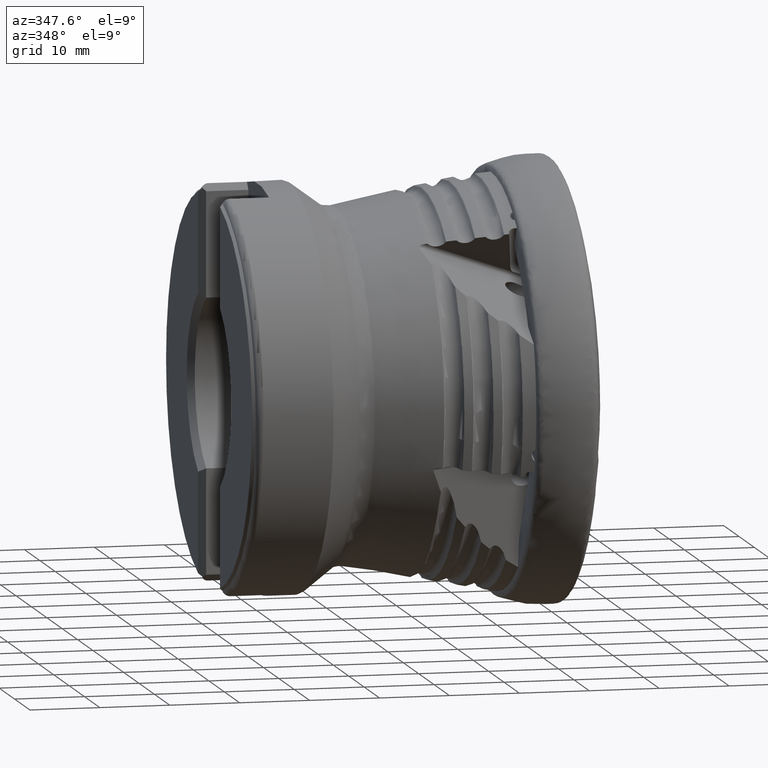
[diagram: clean part render]
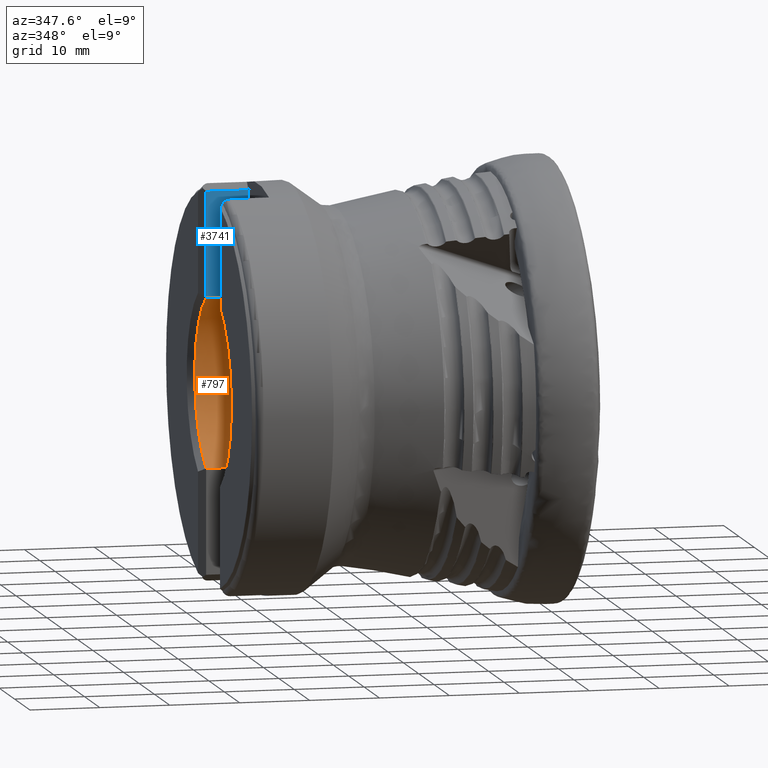
[diagram: same view with the hole feature highlighted: cylindrical wall and planar end face, labeled with their STEP entity ids]
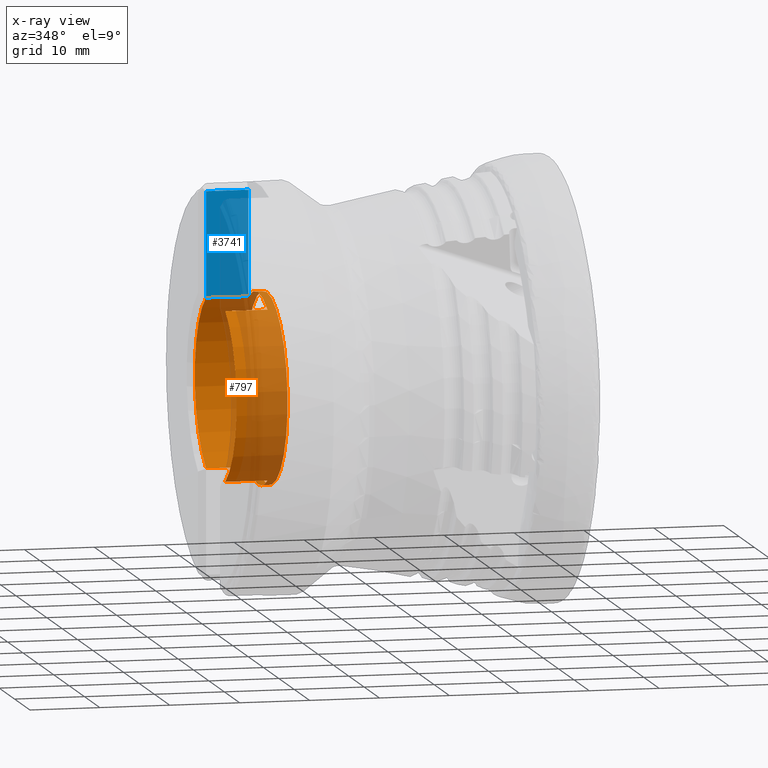
[diagram: x-ray of the same camera — body ghosted, the hole faces saturated]
A machine part, auxiliary view. The highlighted faces form one hole feature of diameter 27.15 mm: the cylindrical wall (entity #797, orange) and its adjacent planar end face (entity #3741, blue) — they share a circular edge in the B-rep.
The next image is the same camera in x-ray (body ghosted, the hole faces saturated) — the bore reads through the body.
Wall:
#274 = ORIENTED_EDGE ( 'NONE', *, *, #3634, .F. ) ;
#333 = DIRECTION ( 'NONE',  ( 0.0000000000000000000, 1.776356839400250500E-015, -1.000000000000000000 ) ) ;
#348 = CARTESIAN_POINT ( 'NONE',  ( -48.04999999999999700, -6.200000000000005500, -12.07644918839970000 ) ) ;
#521 = CARTESIAN_POINT ( 'NONE',  ( -48.04999999999999700, -6.200000000000005500, 12.07644918839969800 ) ) ;
#560 = CIRCLE ( 'NONE', #2340, 13.57499999999999400 ) ;
#593 = CARTESIAN_POINT ( 'NONE',  ( 1.777733148934907600E-015, -6.199999999999992200, 12.07644918839970500 ) ) ;
#597 = EDGE_CURVE ( 'Kante69', #1904, #8411, #560, .T. ) ;
#647 = VERTEX_POINT ( 'NONE', #348 ) ;
#727 = LINE ( 'NONE', #10074, #3137 ) ;
#735 = VERTEX_POINT ( 'NONE', #10151 ) ;
#797 = ADVANCED_FACE ( 'NONE', ( #7939, #6285 ), #9847, .F. ) ;
#858 = EDGE_LOOP ( 'NONE', ( #274, #6076, #8115, #8631, #5950, #9657, #4501, #9560 ) ) ;
#1239 = DIRECTION ( 'NONE',  ( 0.0000000000000000000, 0.0000000000000000000, -1.000000000000000000 ) ) ;
#1568 = VECTOR ( 'NONE', #9137, 1000.000000000000000 ) ;
#1850 = VERTEX_POINT ( 'NONE', #7727 ) ;
#1904 = VERTEX_POINT ( 'NONE', #7566 ) ;
#1946 = DIRECTION ( 'NONE',  ( 1.000000000000000000, -0.0000000000000000000, -0.0000000000000000000 ) ) ;
#2043 = EDGE_CURVE ( 'Kante70', #3146, #1850, #6394, .T. ) ;
#2046 = EDGE_CURVE ( 'Kante3', #9557, #1904, #10491, .T. ) ;
#2066 = AXIS2_PLACEMENT_3D ( 'NONE', #9563, #4672, #10389 ) ;
#2226 = AXIS2_PLACEMENT_3D ( 'NONE', #2777, #8479, #3596 ) ;
#2340 = AXIS2_PLACEMENT_3D ( 'NONE', #10096, #5205, #333 ) ;
#2400 = VERTEX_POINT ( 'NONE', #4667 ) ;
#2594 = CARTESIAN_POINT ( 'NONE',  ( 0.0000000000000000000, 6.199999999999994000, -12.07644918839970500 ) ) ;
#2777 = CARTESIAN_POINT ( 'NONE',  ( -40.74999999999999300, 0.0000000000000000000, 0.0000000000000000000 ) ) ;
#2897 = CARTESIAN_POINT ( 'NONE',  ( -41.99999999999999300, 6.199999999999994000, 12.07644918839970500 ) ) ;
#2913 = DIRECTION ( 'NONE',  ( 1.000000000000000000, -0.0000000000000000000, -0.0000000000000000000 ) ) ;
#2945 = DIRECTION ( 'NONE',  ( 1.000000000000000000, -0.0000000000000000000, -0.0000000000000000000 ) ) ;
#3135 = VERTEX_POINT ( 'NONE', #8571 ) ;
#3137 = VECTOR ( 'NONE', #5222, 1000.000000000000000 ) ;
#3146 = VERTEX_POINT ( 'NONE', #8189 ) ;
#3596 = DIRECTION ( 'NONE',  ( 0.0000000000000000000, 0.0000000000000000000, -1.000000000000000000 ) ) ;
#3634 = EDGE_CURVE ( 'NONE', #735, #2400, #5492, .T. ) ;
#3972 = VECTOR ( 'NONE', #7881, 1000.000000000000000 ) ;
#4148 = EDGE_LOOP ( 'NONE', ( #7895 ) ) ;
#4342 = AXIS2_PLACEMENT_3D ( 'NONE', #6852, #1946, #7675 ) ;
#4501 = ORIENTED_EDGE ( 'NONE', *, *, #597, .T. ) ;
#4667 = CARTESIAN_POINT ( 'NONE',  ( -48.04999999999999700, 6.199999999999994000, 12.07644918839970500 ) ) ;
#4672 = DIRECTION ( 'NONE',  ( -1.000000000000000000, -0.0000000000000000000, -0.0000000000000000000 ) ) ;
#5177 = LINE ( 'NONE', #7837, #7096 ) ;
#5205 = DIRECTION ( 'NONE',  ( -1.000000000000000000, -0.0000000000000000000, -0.0000000000000000000 ) ) ;
#5222 = DIRECTION ( 'NONE',  ( -1.000000000000000000, 0.0000000000000000000, 0.0000000000000000000 ) ) ;
#5340 = EDGE_CURVE ( 'NONE', #8411, #2400, #727, .T. ) ;
#5398 = CIRCLE ( 'NONE', #4342, 13.57499999999999400 ) ;
#5492 = CIRCLE ( 'NONE', #8926, 13.57499999999999400 ) ;
#5787 = CIRCLE ( 'NONE', #2226, 13.57499999999999400 ) ;
#5950 = ORIENTED_EDGE ( 'NONE', *, *, #7546, .F. ) ;
#6076 = ORIENTED_EDGE ( 'NONE', *, *, #7396, .T. ) ;
#6285 = FACE_OUTER_BOUND ( 'NONE', #4148, .T. ) ;
#6394 = CIRCLE ( 'NONE', #2066, 13.57499999999999400 ) ;
#6852 = CARTESIAN_POINT ( 'NONE',  ( -48.04999999999999700, 0.0000000000000000000, 0.0000000000000000000 ) ) ;
#7096 = VECTOR ( 'NONE', #10272, 1000.000000000000000 ) ;
#7396 = EDGE_CURVE ( 'NONE', #735, #3146, #8077, .T. ) ;
#7546 = EDGE_CURVE ( 'NONE', #9557, #647, #5398, .T. ) ;
#7566 = CARTESIAN_POINT ( 'NONE',  ( -41.99999999999999300, -6.200000000000003700, 12.07644918839970100 ) ) ;
#7675 = DIRECTION ( 'NONE',  ( 0.0000000000000000000, 0.0000000000000000000, -1.000000000000000000 ) ) ;
#7727 = CARTESIAN_POINT ( 'NONE',  ( -41.99999999999999300, -6.200000000000003700, -12.07644918839970500 ) ) ;
#7793 = CARTESIAN_POINT ( 'NONE',  ( -48.04999999999999700, 0.0000000000000000000, 0.0000000000000000000 ) ) ;
#7837 = CARTESIAN_POINT ( 'NONE',  ( 1.777733148934907600E-015, -6.199999999999992200, -12.07644918839970500 ) ) ;
#7881 = DIRECTION ( 'NONE',  ( 1.000000000000000000, -0.0000000000000000000, -0.0000000000000000000 ) ) ;
#7895 = ORIENTED_EDGE ( 'NONE', *, *, #9302, .T. ) ;
#7939 = FACE_OUTER_BOUND ( 'NONE', #858, .T. ) ;
#8077 = LINE ( 'NONE', #2594, #1568 ) ;
#8115 = ORIENTED_EDGE ( 'NONE', *, *, #2043, .T. ) ;
#8189 = CARTESIAN_POINT ( 'NONE',  ( -41.99999999999999300, 6.199999999999994000, -12.07644918839970500 ) ) ;
#8357 = AXIS2_PLACEMENT_3D ( 'NONE', #8649, #2945, #1239 ) ;
#8411 = VERTEX_POINT ( 'NONE', #2897 ) ;
#8479 = DIRECTION ( 'NONE',  ( 1.000000000000000000, -0.0000000000000000000, -0.0000000000000000000 ) ) ;
#8571 = CARTESIAN_POINT ( 'NONE',  ( -40.74999999999999300, 0.0000000000000000000, -13.57499999999999400 ) ) ;
#8616 = DIRECTION ( 'NONE',  ( 0.0000000000000000000, 0.0000000000000000000, -1.000000000000000000 ) ) ;
#8631 = ORIENTED_EDGE ( 'NONE', *, *, #8962, .T. ) ;
#8649 = CARTESIAN_POINT ( 'NONE',  ( 0.0000000000000000000, 0.0000000000000000000, 0.0000000000000000000 ) ) ;
#8926 = AXIS2_PLACEMENT_3D ( 'NONE', #7793, #2913, #8616 ) ;
#8962 = EDGE_CURVE ( 'NONE', #1850, #647, #5177, .T. ) ;
#9137 = DIRECTION ( 'NONE',  ( 1.000000000000000000, -0.0000000000000000000, -0.0000000000000000000 ) ) ;
#9302 = EDGE_CURVE ( 'NONE', #3135, #3135, #5787, .T. ) ;
#9557 = VERTEX_POINT ( 'NONE', #521 ) ;
#9560 = ORIENTED_EDGE ( 'NONE', *, *, #5340, .T. ) ;
#9563 = CARTESIAN_POINT ( 'NONE',  ( -41.99999999999999300, 0.0000000000000000000, 0.0000000000000000000 ) ) ;
#9657 = ORIENTED_EDGE ( 'NONE', *, *, #2046, .T. ) ;
#9847 = CYLINDRICAL_SURFACE ( 'NONE', #8357, 13.57499999999999400 ) ;
#10074 = CARTESIAN_POINT ( 'NONE',  ( 0.0000000000000000000, 6.199999999999994000, 12.07644918839970500 ) ) ;
#10096 = CARTESIAN_POINT ( 'NONE',  ( -41.99999999999999300, 0.0000000000000000000, 0.0000000000000000000 ) ) ;
#10151 = CARTESIAN_POINT ( 'NONE',  ( -48.04999999999999700, 6.199999999999994000, -12.07644918839970500 ) ) ;
#10272 = DIRECTION ( 'NONE',  ( -1.000000000000000000, 0.0000000000000000000, 0.0000000000000000000 ) ) ;
#10389 = DIRECTION ( 'NONE',  ( 0.0000000000000000000, 0.0000000000000000000, -1.000000000000000000 ) ) ;
#10491 = LINE ( 'NONE', #593, #3972 ) ;
End face:
#301 = VERTEX_POINT ( 'NONE', #2644 ) ;
#550 = VECTOR ( 'NONE', #8666, 1000.000000000000000 ) ;
#671 = FACE_OUTER_BOUND ( 'NONE', #3183, .T. ) ;
#727 = LINE ( 'NONE', #10074, #3137 ) ;
#1087 = LINE ( 'NONE', #4473, #3240 ) ;
#1511 = DIRECTION ( 'NONE',  ( 0.0000000000000000000, -0.0000000000000000000, 1.000000000000000000 ) ) ;
#2392 = EDGE_CURVE ( 'NONE', #8411, #4279, #8696, .T. ) ;
#2400 = VERTEX_POINT ( 'NONE', #4667 ) ;
#2644 = CARTESIAN_POINT ( 'NONE',  ( -48.04999999999999700, 6.199999999999995700, 27.11621402010955300 ) ) ;
#2860 = VECTOR ( 'NONE', #5527, 1000.000000000000000 ) ;
#2897 = CARTESIAN_POINT ( 'NONE',  ( -41.99999999999999300, 6.199999999999994000, 12.07644918839970500 ) ) ;
#2926 = CARTESIAN_POINT ( 'NONE',  ( -41.99999999999999300, 6.199999999999994000, -35.00000000000000000 ) ) ;
#3137 = VECTOR ( 'NONE', #5222, 1000.000000000000000 ) ;
#3183 = EDGE_LOOP ( 'NONE', ( #4646, #3352, #8828, #4201 ) ) ;
#3240 = VECTOR ( 'NONE', #9362, 1000.000000000000000 ) ;
#3352 = ORIENTED_EDGE ( 'NONE', *, *, #6773, .T. ) ;
#3741 = ADVANCED_FACE ( 'NONE', ( #671 ), #5585, .F. ) ;
#3809 = AXIS2_PLACEMENT_3D ( 'NONE', #4721, #6398, #1511 ) ;
#3887 = CARTESIAN_POINT ( 'NONE',  ( -48.04999999999999700, 6.199999999999994000, -35.00000000000000000 ) ) ;
#4201 = ORIENTED_EDGE ( 'NONE', *, *, #5340, .F. ) ;
#4279 = VERTEX_POINT ( 'NONE', #6298 ) ;
#4473 = CARTESIAN_POINT ( 'NONE',  ( -47.54999999999999700, 6.199999999999994000, 27.11621402010955300 ) ) ;
#4646 = ORIENTED_EDGE ( 'NONE', *, *, #2392, .T. ) ;
#4667 = CARTESIAN_POINT ( 'NONE',  ( -48.04999999999999700, 6.199999999999994000, 12.07644918839970500 ) ) ;
#4721 = CARTESIAN_POINT ( 'NONE',  ( -48.04999999999999700, 6.199999999999994000, -35.00000000000000000 ) ) ;
#5222 = DIRECTION ( 'NONE',  ( -1.000000000000000000, 0.0000000000000000000, 0.0000000000000000000 ) ) ;
#5340 = EDGE_CURVE ( 'NONE', #8411, #2400, #727, .T. ) ;
#5527 = DIRECTION ( 'NONE',  ( -0.0000000000000000000, -0.0000000000000000000, 1.000000000000000000 ) ) ;
#5585 = PLANE ( 'NONE',  #3809 ) ;
#6298 = CARTESIAN_POINT ( 'NONE',  ( -41.99999999999999300, 6.199999999999994000, 27.11621402010955300 ) ) ;
#6332 = EDGE_CURVE ( 'NONE', #2400, #301, #9113, .T. ) ;
#6398 = DIRECTION ( 'NONE',  ( -0.0000000000000000000, 1.000000000000000000, 0.0000000000000000000 ) ) ;
#6773 = EDGE_CURVE ( 'NONE', #4279, #301, #1087, .T. ) ;
#8411 = VERTEX_POINT ( 'NONE', #2897 ) ;
#8666 = DIRECTION ( 'NONE',  ( -0.0000000000000000000, -0.0000000000000000000, 1.000000000000000000 ) ) ;
#8696 = LINE ( 'NONE', #2926, #550 ) ;
#8828 = ORIENTED_EDGE ( 'NONE', *, *, #6332, .F. ) ;
#9113 = LINE ( 'NONE', #3887, #2860 ) ;
#9362 = DIRECTION ( 'NONE',  ( -1.000000000000000000, 0.0000000000000000000, 0.0000000000000000000 ) ) ;
#10074 = CARTESIAN_POINT ( 'NONE',  ( 0.0000000000000000000, 6.199999999999994000, 12.07644918839970500 ) ) ;